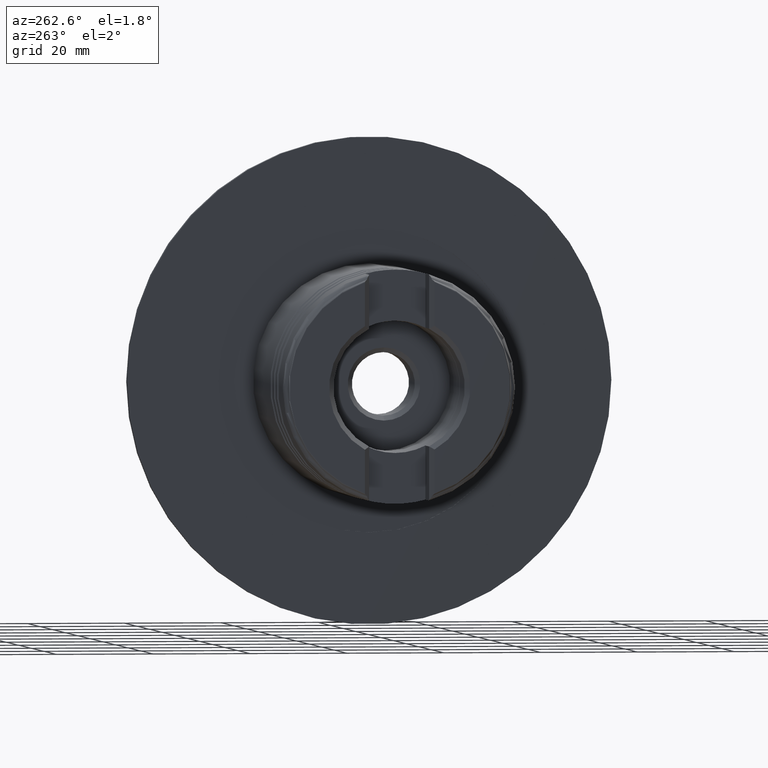
[diagram: clean part render]
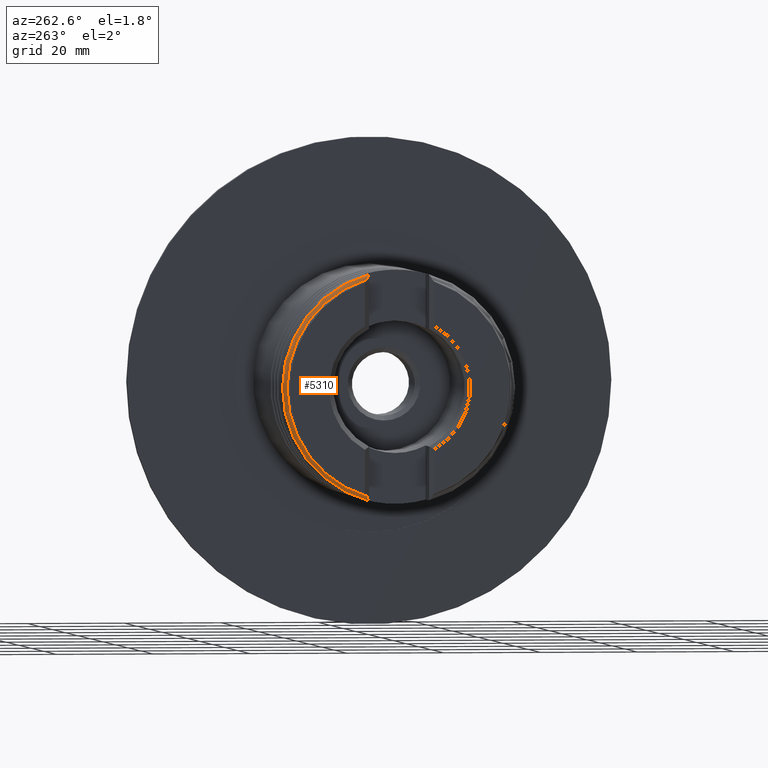
[diagram: same view with one face highlighted and labeled with its STEP entity id]
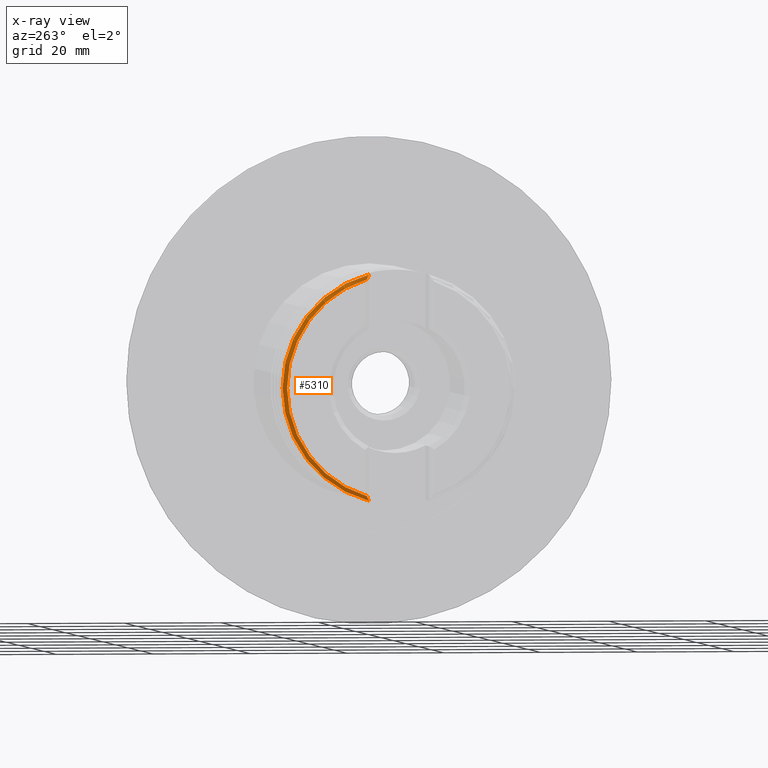
[diagram: x-ray of the same camera — body ghosted, the highlighted face saturated]
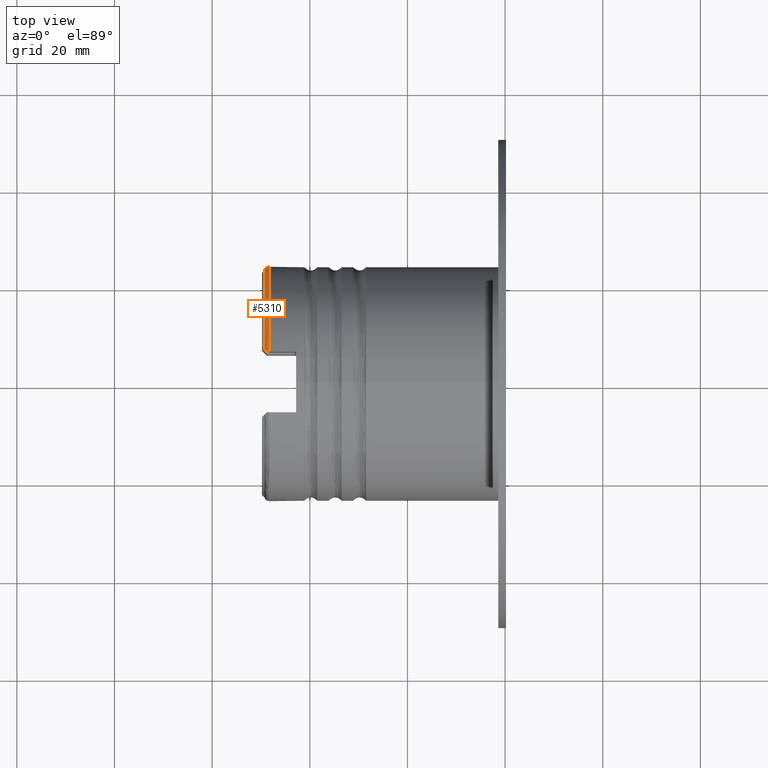
[diagram: same view with one face highlighted and labeled with its STEP entity id]
A machine part, auxiliary view. The second image highlights one B-rep face of the part: STEP entity #5310.
The next image is the same camera in x-ray: the body ghosted, the highlighted face saturated — about 0% of this face is hidden behind the body in this view.
A second angle (top view) of the same face is appended — the face is thin or edge-on in the first view.
In plain terms, the highlighted toroidal blend (fillet) surface has major radius 23 mm and minor (blend) radius 1 mm.
Its self-contained STEP definition (entity closure, byte-faithful):
#81 = CARTESIAN_POINT ( 'NONE',  ( -49.13631656473356912, 6.536367904733544343, 22.62741774778108095 ) ) ;
#114 = CARTESIAN_POINT ( 'NONE',  ( -48.29994865999999831, 0.0000000000000000000, 0.0000000000000000000 ) ) ;
#139 = CIRCLE ( 'NONE', #1416, 23.20386024624726673 ) ;
#353 = CIRCLE ( 'NONE', #4572, 23.99999999999998934 ) ;
#359 = B_SPLINE_CURVE_WITH_KNOTS ( 'NONE', 3,
 ( #2376, #3630, #4453, #4868, #2438, #376 ),
 .UNSPECIFIED., .F., .F.,
 ( 4, 2, 4 ),
 ( 0.006036584063401352097, 0.006297327253664214766, 0.006558070443927077435 ),
 .UNSPECIFIED. ) ;
#376 = CARTESIAN_POINT ( 'NONE',  ( -48.29994865999999831, 6.200000000000000178, -23.18534019590826745 ) ) ;
#521 = EDGE_CURVE ( 'NONE', #1191, #5314, #3581, .T. ) ;
#531 = CARTESIAN_POINT ( 'NONE',  ( -49.01038648936967235, 6.410437829369672436, 22.83475769216381579 ) ) ;
#549 = CARTESIAN_POINT ( 'NONE',  ( -48.79994866000000542, 6.199999999999993072, 23.04663030844220728 ) ) ;
#703 = CARTESIAN_POINT ( 'NONE',  ( -48.29994865999999831, 6.200000000000000178, 23.18534019590826745 ) ) ;
#735 = VERTEX_POINT ( 'NONE', #5182 ) ;
#738 = TOROIDAL_SURFACE ( 'NONE', #4649, 22.99999999999999289, 0.9999999999999986677 ) ;
#778 = DIRECTION ( 'NONE',  ( 1.000000000000000000, -0.0000000000000000000, -0.0000000000000000000 ) ) ;
#1014 = ORIENTED_EDGE ( 'NONE', *, *, #1115, .F. ) ;
#1115 = EDGE_CURVE ( 'NONE', #4603, #4122, #353, .T. ) ;
#1121 = CARTESIAN_POINT ( 'NONE',  ( -48.29994865999999831, 6.200000000000000178, -23.18534019590826745 ) ) ;
#1124 = CARTESIAN_POINT ( 'NONE',  ( -48.47463431697376990, 6.199999999999993072, 23.17343717371541345 ) ) ;
#1174 = B_SPLINE_CURVE_WITH_KNOTS ( 'NONE', 3,
 ( #549, #3414, #531, #81, #3371, #2947, #2114, #3389 ),
 .UNSPECIFIED., .F., .F.,
 ( 4, 2, 2, 4 ),
 ( 3.949984598926719470E-05, 0.0005837358292485890065, 0.0008558538208782580066, 0.001127971812507927224 ),
 .UNSPECIFIED. ) ;
#1191 = VERTEX_POINT ( 'NONE', #4632 ) ;
#1211 = B_SPLINE_CURVE_WITH_KNOTS ( 'NONE', 3,
 ( #3652, #2748, #1124, #5234, #4811, #3192 ),
 .UNSPECIFIED., .F., .F.,
 ( 4, 2, 4 ),
 ( 0.003415805829829134718, 0.003677245385189107166, 0.003938684940549080048 ),
 .UNSPECIFIED. ) ;
#1416 = AXIS2_PLACEMENT_3D ( 'NONE', #3366, #4555, #4519 ) ;
#1485 = CARTESIAN_POINT ( 'NONE',  ( -48.91017599860237652, 6.310227338602360625, -22.95107455203664770 ) ) ;
#1740 = DIRECTION ( 'NONE',  ( 1.000000000000000000, -0.0000000000000000000, -0.0000000000000000000 ) ) ;
#1853 = CARTESIAN_POINT ( 'NONE',  ( -48.79994866000000542, 6.199999999999993072, 23.04663030844220728 ) ) ;
#1895 = CARTESIAN_POINT ( 'NONE',  ( -48.79994866000000542, 6.199999999999993072, -23.04663030844386995 ) ) ;
#1943 = EDGE_CURVE ( 'NONE', #1191, #735, #139, .T. ) ;
#2089 = EDGE_CURVE ( 'NONE', #4122, #4941, #1211, .T. ) ;
#2114 = CARTESIAN_POINT ( 'NONE',  ( -49.26241310964487496, 6.662464449644836861, 22.30972609264388495 ) ) ;
#2160 = EDGE_CURVE ( 'NONE', #5314, #4603, #359, .T. ) ;
#2376 = CARTESIAN_POINT ( 'NONE',  ( -48.79994866000000542, 6.199999999999993072, -23.04663030844386995 ) ) ;
#2438 = CARTESIAN_POINT ( 'NONE',  ( -48.38688188749524954, 6.199999999999993960, -23.18534019590827100 ) ) ;
#2593 = DIRECTION ( 'NONE',  ( 0.0000000000000000000, 0.0000000000000000000, -1.000000000000000000 ) ) ;
#2748 = CARTESIAN_POINT ( 'NONE',  ( -48.38826913403591590, 6.199999999999993960, 23.18534019590827455 ) ) ;
#2804 = ORIENTED_EDGE ( 'NONE', *, *, #2089, .F. ) ;
#2947 = CARTESIAN_POINT ( 'NONE',  ( -49.23685111677940540, 6.636902456779383286, 22.39471517510967402 ) ) ;
#3072 = ORIENTED_EDGE ( 'NONE', *, *, #521, .F. ) ;
#3192 = CARTESIAN_POINT ( 'NONE',  ( -48.79994866000000542, 6.199999999999993072, 23.04663030844220728 ) ) ;
#3366 = CARTESIAN_POINT ( 'NONE',  ( -49.27894866000000462, 0.0000000000000000000, 0.0000000000000000000 ) ) ;
#3371 = CARTESIAN_POINT ( 'NONE',  ( -49.17365642587422769, 6.573707765874210018, 22.55367360846426550 ) ) ;
#3389 = CARTESIAN_POINT ( 'NONE',  ( -49.27894866000000462, 6.678999999999986059, 22.22183811765746597 ) ) ;
#3414 = CARTESIAN_POINT ( 'NONE',  ( -48.91004505475818576, 6.310096394758148541, 22.95118806687087698 ) ) ;
#3496 = FACE_OUTER_BOUND ( 'NONE', #4503, .T. ) ;
#3516 = CARTESIAN_POINT ( 'NONE',  ( -49.27894866000026042, 6.679000000000245407, -22.22183811765665951 ) ) ;
#3528 = CARTESIAN_POINT ( 'NONE',  ( -49.01081546339758432, 6.410866803397564873, -22.83401857683361769 ) ) ;
#3556 = ORIENTED_EDGE ( 'NONE', *, *, #2160, .F. ) ;
#3581 = B_SPLINE_CURVE_WITH_KNOTS ( 'NONE', 3,
 ( #3516, #4360, #4347, #3528, #1485, #1895 ),
 .UNSPECIFIED., .F., .F.,
 ( 4, 2, 4 ),
 ( 0.001373697768814892937, 0.001918137762093498865, 0.002462577755372104792 ),
 .UNSPECIFIED. ) ;
#3630 = CARTESIAN_POINT ( 'NONE',  ( -48.72535888858941178, 6.199999999999993960, -23.09122583663225114 ) ) ;
#3642 = ORIENTED_EDGE ( 'NONE', *, *, #1943, .T. ) ;
#3652 = CARTESIAN_POINT ( 'NONE',  ( -48.29994865999999831, 6.200000000000000178, 23.18534019590826745 ) ) ;
#3657 = DIRECTION ( 'NONE',  ( 0.0000000000000000000, 0.0000000000000000000, -1.000000000000000000 ) ) ;
#3689 = CARTESIAN_POINT ( 'NONE',  ( -48.29994865999999831, 0.0000000000000000000, 0.0000000000000000000 ) ) ;
#3924 = EDGE_CURVE ( 'NONE', #4941, #735, #1174, .T. ) ;
#4122 = VERTEX_POINT ( 'NONE', #703 ) ;
#4347 = CARTESIAN_POINT ( 'NONE',  ( -49.17769797731100567, 6.577749317310981780, -22.55931733192108268 ) ) ;
#4360 = CARTESIAN_POINT ( 'NONE',  ( -49.24548009308421115, 6.645531433084198802, -22.39972663716593004 ) ) ;
#4453 = CARTESIAN_POINT ( 'NONE',  ( -48.64363953494827086, 6.199999999999993072, -23.12648771800309078 ) ) ;
#4503 = EDGE_LOOP ( 'NONE', ( #3072, #3642, #4574, #2804, #1014, #3556 ) ) ;
#4519 = DIRECTION ( 'NONE',  ( 0.0000000000000000000, 0.0000000000000000000, -1.000000000000000000 ) ) ;
#4538 = CARTESIAN_POINT ( 'NONE',  ( -48.79994866000000542, 6.199999999999993072, -23.04663030844386995 ) ) ;
#4555 = DIRECTION ( 'NONE',  ( 1.000000000000000000, -0.0000000000000000000, -0.0000000000000000000 ) ) ;
#4572 = AXIS2_PLACEMENT_3D ( 'NONE', #114, #1740, #2593 ) ;
#4574 = ORIENTED_EDGE ( 'NONE', *, *, #3924, .F. ) ;
#4603 = VERTEX_POINT ( 'NONE', #1121 ) ;
#4632 = CARTESIAN_POINT ( 'NONE',  ( -49.27894866000026042, 6.679000000000245407, -22.22183811765665951 ) ) ;
#4649 = AXIS2_PLACEMENT_3D ( 'NONE', #3689, #778, #3657 ) ;
#4811 = CARTESIAN_POINT ( 'NONE',  ( -48.72505119603181356, 6.199999999999993960, 23.09140979901573587 ) ) ;
#4868 = CARTESIAN_POINT ( 'NONE',  ( -48.47464520240500008, 6.199999999999991296, -23.17343820292965262 ) ) ;
#4941 = VERTEX_POINT ( 'NONE', #1853 ) ;
#5182 = CARTESIAN_POINT ( 'NONE',  ( -49.27894866000000462, 6.678999999999986059, 22.22183811765746597 ) ) ;
#5234 = CARTESIAN_POINT ( 'NONE',  ( -48.64356692942322979, 6.199999999999991296, 23.12651194090886619 ) ) ;
#5310 = ADVANCED_FACE ( 'NONE', ( #3496 ), #738, .T. ) ;
#5314 = VERTEX_POINT ( 'NONE', #4538 ) ;